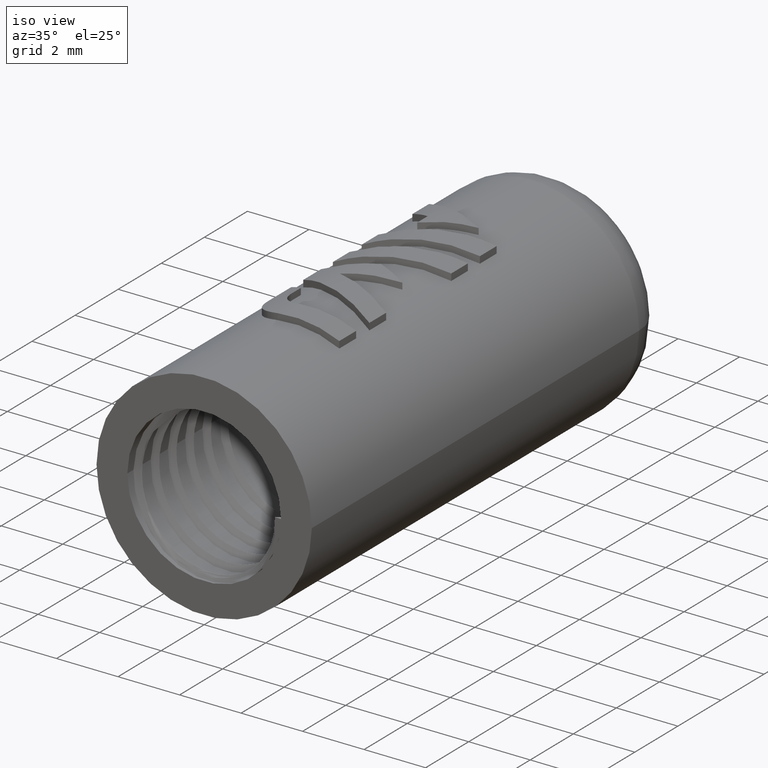
[diagram: clean part render]
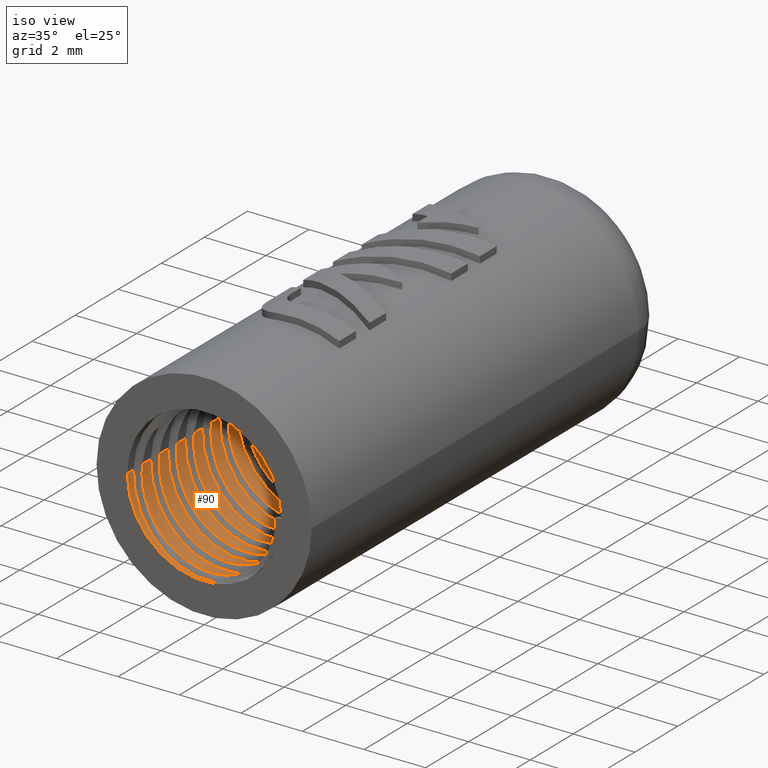
[diagram: same view with one face highlighted and labeled with its STEP entity id]
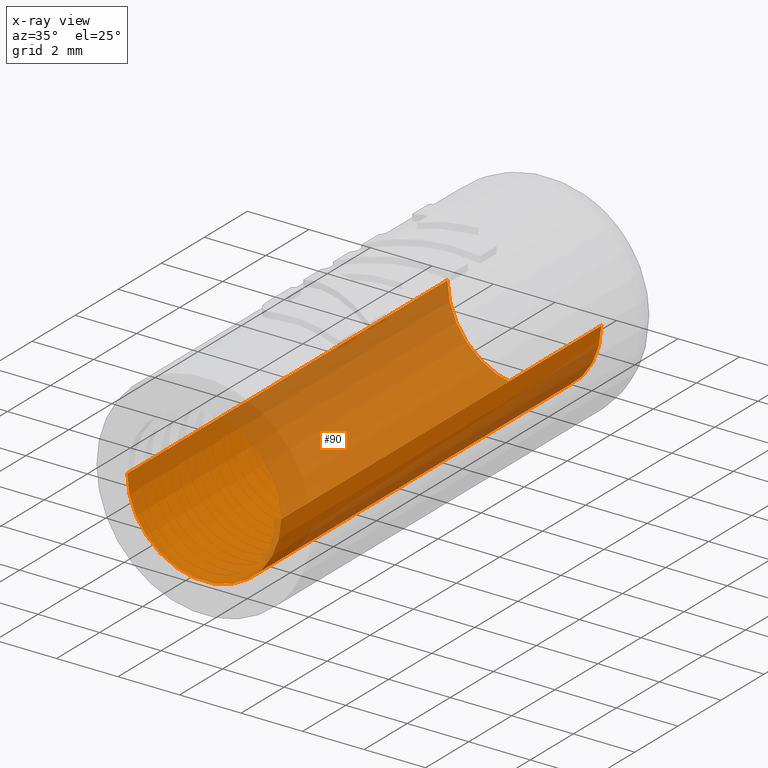
[diagram: x-ray of the same camera — body ghosted, the highlighted face saturated]
A machine part, iso view. The second image highlights one B-rep face of the part: STEP entity #90.
The next image is the same camera in x-ray: the body ghosted, the highlighted face saturated — about 58% of this face is hidden behind the body in this view.
In plain terms, the highlighted cylindrical surface (partial cylindrical patch) has radius 2.5 mm, axis along (-0, 1, 0).
Its self-contained STEP definition (entity closure, byte-faithful):
#90=ADVANCED_FACE('',(#181),#182,.F.);
#181=FACE_OUTER_BOUND('',#1916,.T.);
#182=CYLINDRICAL_SURFACE('',#1917,2.5);
#1916=EDGE_LOOP('',(#2113,#2114,#2115,#2116));
#1917=AXIS2_PLACEMENT_3D('',#2117,#2118,#2119);
#2113=ORIENTED_EDGE('',*,*,#2764,.F.);
#2114=ORIENTED_EDGE('',*,*,#2765,.F.);
#2115=ORIENTED_EDGE('',*,*,#2766,.F.);
#2116=ORIENTED_EDGE('',*,*,#2767,.T.);
#2117=CARTESIAN_POINT('',(0.0,0.0,0.0));
#2118=DIRECTION('',(-0.0,1.0,0.0));
#2119=DIRECTION('',(1.0,0.0,-6.12323399573677E-17));
#2764=EDGE_CURVE('',#2980,#2988,#2989,.T.);
#2765=EDGE_CURVE('',#2983,#2980,#2990,.T.);
#2766=EDGE_CURVE('',#2991,#2983,#2992,.T.);
#2767=EDGE_CURVE('',#2991,#2988,#2993,.T.);
#2980=VERTEX_POINT('',#4135);
#2983=VERTEX_POINT('',#4138);
#2988=VERTEX_POINT('',#4143);
#2989=LINE('',#4144,#4145);
#2990=CIRCLE('',#4146,2.5);
#2991=VERTEX_POINT('',#4147);
#2992=LINE('',#4148,#4149);
#2993=CIRCLE('',#4150,2.5);
#4135=CARTESIAN_POINT('',(2.5,14.8674678819507,-1.53080849893419E-16));
#4138=CARTESIAN_POINT('',(-2.5,14.8674678819507,-1.53080849893419E-16));
#4143=CARTESIAN_POINT('',(2.5,0.0,-1.53080849893419E-16));
#4144=CARTESIAN_POINT('',(2.5,0.0,1.53080849893419E-16));
#4145=VECTOR('',#4591,1.0);
#4146=AXIS2_PLACEMENT_3D('',#4592,#4593,#4594);
#4147=CARTESIAN_POINT('',(-2.5,0.0,-1.53080849893419E-16));
#4148=CARTESIAN_POINT('',(-2.5,0.0,-1.53080849893419E-16));
#4149=VECTOR('',#4595,1.0);
#4150=AXIS2_PLACEMENT_3D('',#4596,#4597,#4598);
#4591=DIRECTION('',(0.0,-1.0,0.0));
#4592=CARTESIAN_POINT('',(0.0,14.8674678819507,0.0));
#4593=DIRECTION('',(0.0,-1.0,0.0));
#4594=DIRECTION('',(1.0,0.0,-6.12323399573677E-17));
#4595=DIRECTION('',(-0.0,1.0,-0.0));
#4596=CARTESIAN_POINT('',(0.0,0.0,0.0));
#4597=DIRECTION('',(0.0,-1.0,0.0));
#4598=DIRECTION('',(1.0,0.0,-6.12323399573677E-17));